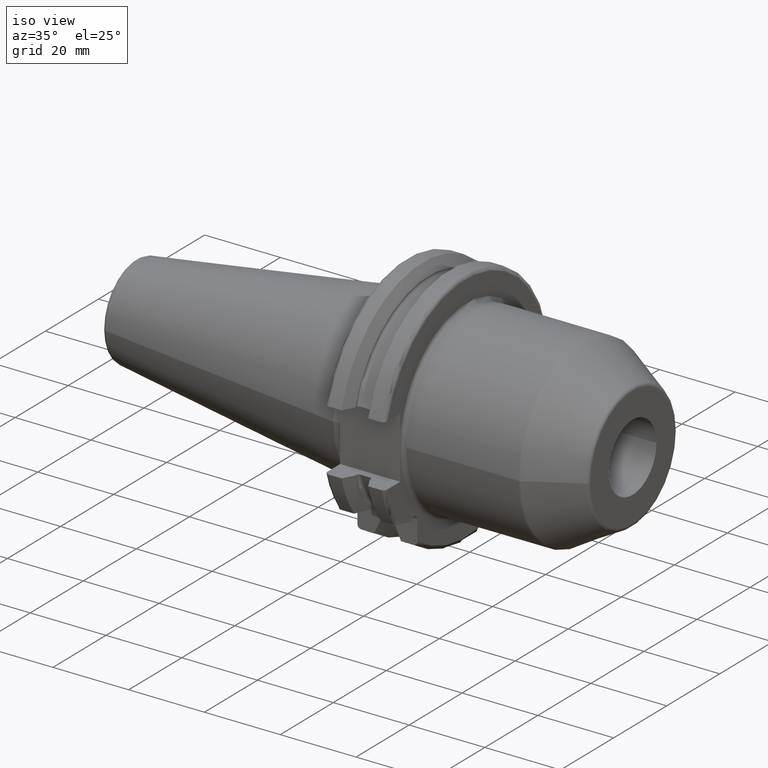
[diagram: clean part render]
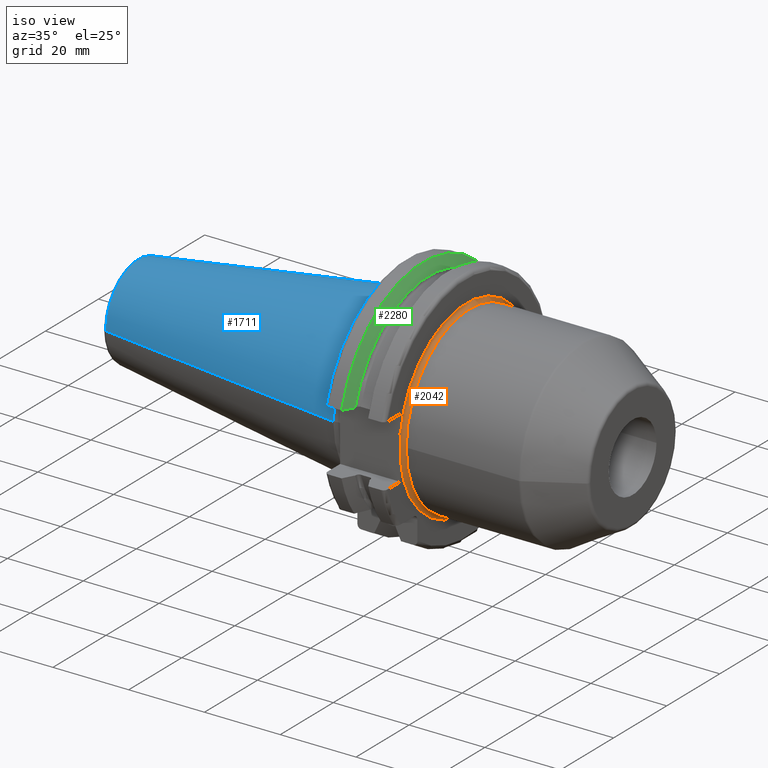
[diagram: same view with three faces highlighted in distinct colors, each labeled with its STEP entity id]
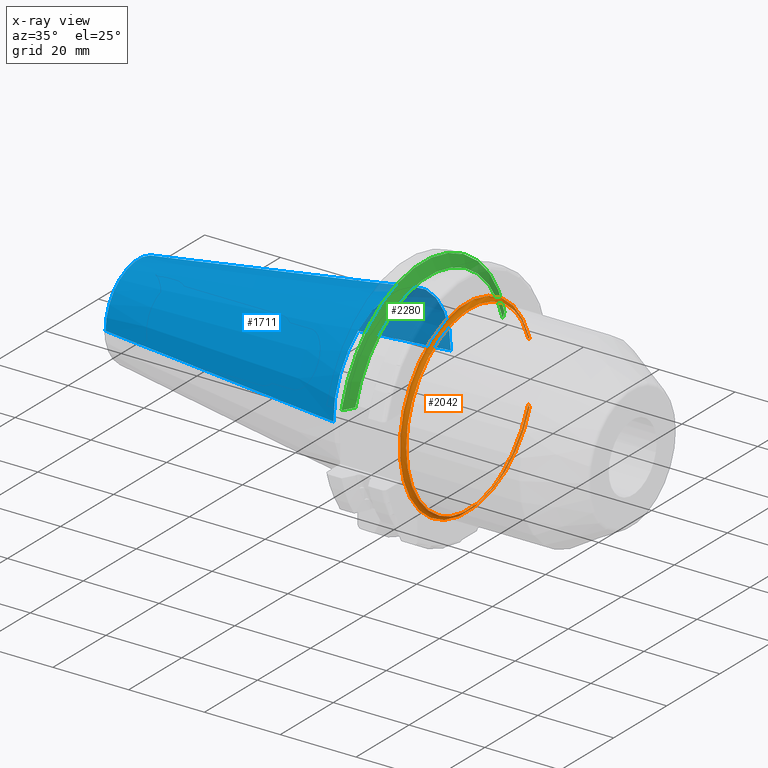
[diagram: x-ray of the same camera — body ghosted, the three highlighted faces saturated]
A machine part, iso view with three faces highlighted in distinct colors.
The next image is the same camera in x-ray (body ghosted, the three faces saturated) — at least one of them is partly hidden behind the body in this view.
Their STEP definitions:

[orange] entity #2042 — the highlighted toroidal blend (fillet) surface has major radius 25 mm and minor (blend) radius 1 mm.
#170=CARTESIAN_POINT('',(2.005E1,0.E0,0.E0));
#171=DIRECTION('',(1.E0,0.E0,0.E0));
#172=DIRECTION('',(0.E0,9.413255281782E-1,3.375E-1));
#173=AXIS2_PLACEMENT_3D('',#170,#171,#172);
#216=CARTESIAN_POINT('',(2.005E1,0.E0,0.E0));
#217=DIRECTION('',(1.E0,0.E0,0.E0));
#218=DIRECTION('',(0.E0,-1.E0,0.E0));
#219=AXIS2_PLACEMENT_3D('',#216,#217,#218);
#242=CARTESIAN_POINT('',(1.905E1,0.E0,0.E0));
#243=DIRECTION('',(1.E0,0.E0,0.E0));
#244=DIRECTION('',(0.E0,-9.939928690460E-1,-1.094448549989E-1));
#245=AXIS2_PLACEMENT_3D('',#242,#243,#244);
#267=CARTESIAN_POINT('',(1.905E1,0.E0,0.E0));
#268=DIRECTION('',(1.E0,0.E0,0.E0));
#269=DIRECTION('',(0.E0,9.460570807303E-1,3.24E-1));
#270=AXIS2_PLACEMENT_3D('',#267,#268,#269);
#284=CARTESIAN_POINT('',(2.005E1,2.259181267628E1,-8.1E0));
#285=CARTESIAN_POINT('',(1.996471559679E1,2.259181267628E1,-8.1E0));
#286=CARTESIAN_POINT('',(1.979872990014E1,2.261366886611E1,-8.1E0));
#287=CARTESIAN_POINT('',(1.954992991274E1,2.271974591536E1,-8.1E0));
#288=CARTESIAN_POINT('',(1.934199978608E1,2.288730200111E1,-8.1E0));
#289=CARTESIAN_POINT('',(1.917951445041E1,2.310525621382E1,-8.1E0));
#290=CARTESIAN_POINT('',(1.907329022132E1,2.337183787163E1,-8.1E0));
#291=CARTESIAN_POINT('',(1.905E1,2.355574199375E1,-8.1E0));
#292=CARTESIAN_POINT('',(1.905E1,2.365142701826E1,-8.1E0));
#294=CARTESIAN_POINT('',(1.905E1,-2.484999615226E1,-2.735083155832E0));
#295=CARTESIAN_POINT('',(1.905E1,-2.484999615226E1,-2.126118093178E0));
#296=CARTESIAN_POINT('',(1.906190707528E1,-2.485000062129E1,
-9.087239020907E-1));
#297=CARTESIAN_POINT('',(1.906190711665E1,-2.485000359708E1,9.099307624885E-1));
#298=CARTESIAN_POINT('',(1.905E1,-2.484999119261E1,2.122483506519E0));
#299=CARTESIAN_POINT('',(1.905E1,-2.484999119261E1,2.731450319914E0));
#301=CARTESIAN_POINT('',(1.905E1,2.365142701826E1,8.1E0));
#302=CARTESIAN_POINT('',(1.905E1,2.355574199375E1,8.1E0));
#303=CARTESIAN_POINT('',(1.907329022132E1,2.337183787163E1,8.1E0));
#304=CARTESIAN_POINT('',(1.917951445041E1,2.310525621382E1,8.1E0));
#305=CARTESIAN_POINT('',(1.934199978608E1,2.288730200111E1,8.1E0));
#306=CARTESIAN_POINT('',(1.954992991274E1,2.271974591536E1,8.1E0));
#307=CARTESIAN_POINT('',(1.979872990014E1,2.261366886611E1,8.1E0));
#308=CARTESIAN_POINT('',(1.996471559679E1,2.259181267628E1,8.1E0));
#309=CARTESIAN_POINT('',(2.005E1,2.259181267628E1,8.1E0));
#1598=CARTESIAN_POINT('',(1.905E1,-2.484982172615E1,-2.736121374973E0));
#1599=CARTESIAN_POINT('',(1.905E1,2.365142701826E1,-8.1E0));
#1600=VERTEX_POINT('',#1598);
#1601=VERTEX_POINT('',#1599);
#1602=CARTESIAN_POINT('',(2.005E1,-2.4E1,0.E0));
#1603=CARTESIAN_POINT('',(2.005E1,2.259181267628E1,-8.1E0));
#1604=VERTEX_POINT('',#1602);
#1605=VERTEX_POINT('',#1603);
#1606=CARTESIAN_POINT('',(1.905E1,2.365142701826E1,8.1E0));
#1607=CARTESIAN_POINT('',(1.905E1,-2.485101971295E1,2.725219115321E0));
#1608=VERTEX_POINT('',#1606);
#1609=VERTEX_POINT('',#1607);
#1610=CARTESIAN_POINT('',(2.005E1,2.259181267628E1,8.1E0));
#1611=VERTEX_POINT('',#1610);
#2027=CARTESIAN_POINT('',(2.005E1,0.E0,0.E0));
#2028=DIRECTION('',(1.E0,0.E0,0.E0));
#2029=DIRECTION('',(0.E0,1.485959642860E-3,-9.999988959614E-1));
#2030=AXIS2_PLACEMENT_3D('',#2027,#2028,#2029);
#2031=TOROIDAL_SURFACE('',#2030,2.5E1,1.E0);
#2032=ORIENTED_EDGE('',*,*,#1889,.T.);
#2033=ORIENTED_EDGE('',*,*,#1937,.T.);
#2034=ORIENTED_EDGE('',*,*,#1953,.T.);
#2035=ORIENTED_EDGE('',*,*,#1990,.F.);
#2037=ORIENTED_EDGE('',*,*,#2036,.T.);
#2038=ORIENTED_EDGE('',*,*,#2015,.F.);
#2039=ORIENTED_EDGE('',*,*,#1844,.T.);
#2040=EDGE_LOOP('',(#2032,#2033,#2034,#2035,#2037,#2038,#2039));
#2041=FACE_OUTER_BOUND('',#2040,.F.);
#2042=ADVANCED_FACE('',(#2041),#2031,.F.);
#174=CIRCLE('',#173,2.4E1);
#220=CIRCLE('',#219,2.4E1);
#246=CIRCLE('',#245,2.5E1);
#271=CIRCLE('',#270,2.5E1);
#293=B_SPLINE_CURVE_WITH_KNOTS('',3,(#284,#285,#286,#287,#288,#289,#290,#291,
#292),.UNSPECIFIED.,.F.,.F.,(4,1,1,1,1,1,4),(0.E0,1.666666666667E-1,
3.333333333333E-1,5.E-1,6.666666666667E-1,8.333333333333E-1,1.E0),
.UNSPECIFIED.);
#300=B_SPLINE_CURVE_WITH_KNOTS('',3,(#294,#295,#296,#297,#298,#299),
.UNSPECIFIED.,.F.,.F.,(4,1,1,4),(0.E0,3.333333333333E-1,6.666666666667E-1,1.E0),
.UNSPECIFIED.);
#310=B_SPLINE_CURVE_WITH_KNOTS('',3,(#301,#302,#303,#304,#305,#306,#307,#308,
#309),.UNSPECIFIED.,.F.,.F.,(4,1,1,1,1,1,4),(0.E0,1.666666666667E-1,
3.333333333333E-1,5.E-1,6.666666666667E-1,8.333333333333E-1,1.E0),
.UNSPECIFIED.);
#1844=EDGE_CURVE('',#1608,#1611,#310,.T.);
#1889=EDGE_CURVE('',#1611,#1604,#174,.T.);
#1937=EDGE_CURVE('',#1604,#1605,#220,.T.);
#1953=EDGE_CURVE('',#1605,#1601,#293,.T.);
#1990=EDGE_CURVE('',#1600,#1601,#246,.T.);
#2015=EDGE_CURVE('',#1608,#1609,#271,.T.);
#2036=EDGE_CURVE('',#1600,#1609,#300,.T.);

[blue] entity #1711 — the highlighted conical surface has half-angle 8.298 deg.
#37=CARTESIAN_POINT('',(-6.743710273571E1,0.E0,0.E0));
#38=DIRECTION('',(1.E0,0.E0,0.E0));
#39=DIRECTION('',(0.E0,1.E0,0.E0));
#40=AXIS2_PLACEMENT_3D('',#37,#38,#39);
#42=CARTESIAN_POINT('',(-4.896823332305E-1,0.E0,0.E0));
#43=DIRECTION('',(1.E0,0.E0,0.E0));
#44=DIRECTION('',(0.E0,1.E0,0.E0));
#45=AXIS2_PLACEMENT_3D('',#42,#43,#44);
#47=DIRECTION('',(-9.895312636440E-1,-1.443186691705E-1,0.E0));
#48=VECTOR('',#47,6.765568998391E1);
#49=CARTESIAN_POINT('',(-4.896823332305E-1,2.215358204157E1,0.E0));
#50=LINE('',#49,#48);
#51=DIRECTION('',(-9.895312636440E-1,1.443186691705E-1,0.E0));
#52=VECTOR('',#51,6.765568998391E1);
#53=CARTESIAN_POINT('',(-4.896823332305E-1,-2.215358204157E1,0.E0));
#54=LINE('',#53,#52);
#1377=CARTESIAN_POINT('',(-6.743710273571E1,1.238960290128E1,0.E0));
#1379=VERTEX_POINT('',#1377);
#1381=CARTESIAN_POINT('',(-6.743710273571E1,-1.238960290128E1,0.E0));
#1383=VERTEX_POINT('',#1381);
#1445=CARTESIAN_POINT('',(-4.896823332305E-1,2.215358204157E1,0.E0));
#1446=VERTEX_POINT('',#1445);
#1447=CARTESIAN_POINT('',(-4.896823332305E-1,-2.215358204157E1,0.E0));
#1448=VERTEX_POINT('',#1447);
#1697=CARTESIAN_POINT('',(-3.396339253447E1,0.E0,0.E0));
#1698=DIRECTION('',(1.E0,0.E0,0.E0));
#1699=DIRECTION('',(0.E0,-1.E0,0.E0));
#1700=AXIS2_PLACEMENT_3D('',#1697,#1698,#1699);
#1701=CONICAL_SURFACE('',#1700,1.727159247143E1,8.297826828206E0);
#1703=ORIENTED_EDGE('',*,*,#1702,.F.);
#1705=ORIENTED_EDGE('',*,*,#1704,.T.);
#1707=ORIENTED_EDGE('',*,*,#1706,.T.);
#1708=ORIENTED_EDGE('',*,*,#1690,.F.);
#1709=EDGE_LOOP('',(#1703,#1705,#1707,#1708));
#1710=FACE_OUTER_BOUND('',#1709,.F.);
#1711=ADVANCED_FACE('',(#1710),#1701,.T.);
#41=CIRCLE('',#40,1.238960290128E1);
#46=CIRCLE('',#45,2.215358204157E1);
#1690=EDGE_CURVE('',#1379,#1383,#41,.T.);
#1702=EDGE_CURVE('',#1446,#1379,#50,.T.);
#1704=EDGE_CURVE('',#1446,#1448,#46,.T.);
#1706=EDGE_CURVE('',#1448,#1383,#54,.T.);

[green] entity #2280 — the highlighted conical surface has half-angle 60 deg.
#323=CARTESIAN_POINT('',(9.2625E0,0.E0,0.E0));
#324=DIRECTION('',(1.E0,0.E0,0.E0));
#325=DIRECTION('',(0.E0,9.600957415706E-1,2.796715341576E-1));
#326=AXIS2_PLACEMENT_3D('',#323,#324,#325);
#483=CARTESIAN_POINT('',(7.645946479578E0,0.E0,0.E0));
#484=DIRECTION('',(1.E0,0.E0,0.E0));
#485=DIRECTION('',(0.E0,9.669363825036E-1,2.550177095632E-1));
#486=AXIS2_PLACEMENT_3D('',#483,#484,#485);
#510=CARTESIAN_POINT('',(7.645946479578E0,3.071231684927E1,8.1E0));
#511=CARTESIAN_POINT('',(7.831754864835E0,3.037948258059E1,8.1E0));
#512=CARTESIAN_POINT('',(8.199252814970E0,2.972048825911E1,8.1E0));
#513=CARTESIAN_POINT('',(8.738047920141E0,2.875212438619E1,8.1E0));
#514=CARTESIAN_POINT('',(9.089058006747E0,2.811971443922E1,8.1E0));
#515=CARTESIAN_POINT('',(9.2625E0,2.780681820245E1,8.1E0));
#517=CARTESIAN_POINT('',(9.2625E0,-2.780681820245E1,8.1E0));
#518=CARTESIAN_POINT('',(9.089138247115E0,-2.811956968242E1,8.1E0));
#519=CARTESIAN_POINT('',(8.738235514848E0,-2.875178670793E1,8.1E0));
#520=CARTESIAN_POINT('',(8.199445066245E0,-2.972014324708E1,8.1E0));
#521=CARTESIAN_POINT('',(7.831837395590E0,-3.037933474515E1,8.1E0));
#522=CARTESIAN_POINT('',(7.645946479578E0,-3.071231684927E1,8.1E0));
#1449=CARTESIAN_POINT('',(9.2625E0,2.780681820245E1,8.1E0));
#1451=VERTEX_POINT('',#1449);
#1461=CARTESIAN_POINT('',(9.2625E0,-2.780681820245E1,8.1E0));
#1463=VERTEX_POINT('',#1461);
#1503=VERTEX_POINT('',#510);
#1504=VERTEX_POINT('',#522);
#2268=CARTESIAN_POINT('',(8.454223239789E0,0.E0,0.E0));
#2269=DIRECTION('',(-1.E0,0.E0,0.E0));
#2270=DIRECTION('',(0.E0,1.E0,0.E0));
#2271=AXIS2_PLACEMENT_3D('',#2268,#2269,#2270);
#2272=CONICAL_SURFACE('',#2271,3.036252358474E1,6.E1);
#2273=ORIENTED_EDGE('',*,*,#1864,.T.);
#2274=ORIENTED_EDGE('',*,*,#2104,.T.);
#2276=ORIENTED_EDGE('',*,*,#2275,.T.);
#2277=ORIENTED_EDGE('',*,*,#2245,.F.);
#2278=EDGE_LOOP('',(#2273,#2274,#2276,#2277));
#2279=FACE_OUTER_BOUND('',#2278,.F.);
#2280=ADVANCED_FACE('',(#2279),#2272,.T.);
#327=CIRCLE('',#326,2.896254716948E1);
#487=CIRCLE('',#486,3.17625E1);
#516=B_SPLINE_CURVE_WITH_KNOTS('',3,(#510,#511,#512,#513,#514,#515),
.UNSPECIFIED.,.F.,.F.,(4,1,1,4),(0.E0,3.333333333333E-1,6.666666666667E-1,1.E0),
.UNSPECIFIED.);
#523=B_SPLINE_CURVE_WITH_KNOTS('',3,(#517,#518,#519,#520,#521,#522),
.UNSPECIFIED.,.F.,.F.,(4,1,1,4),(0.E0,3.333333333333E-1,6.666666666667E-1,1.E0),
.UNSPECIFIED.);
#1864=EDGE_CURVE('',#1503,#1451,#516,.T.);
#2104=EDGE_CURVE('',#1451,#1463,#327,.T.);
#2245=EDGE_CURVE('',#1503,#1504,#487,.T.);
#2275=EDGE_CURVE('',#1463,#1504,#523,.T.);